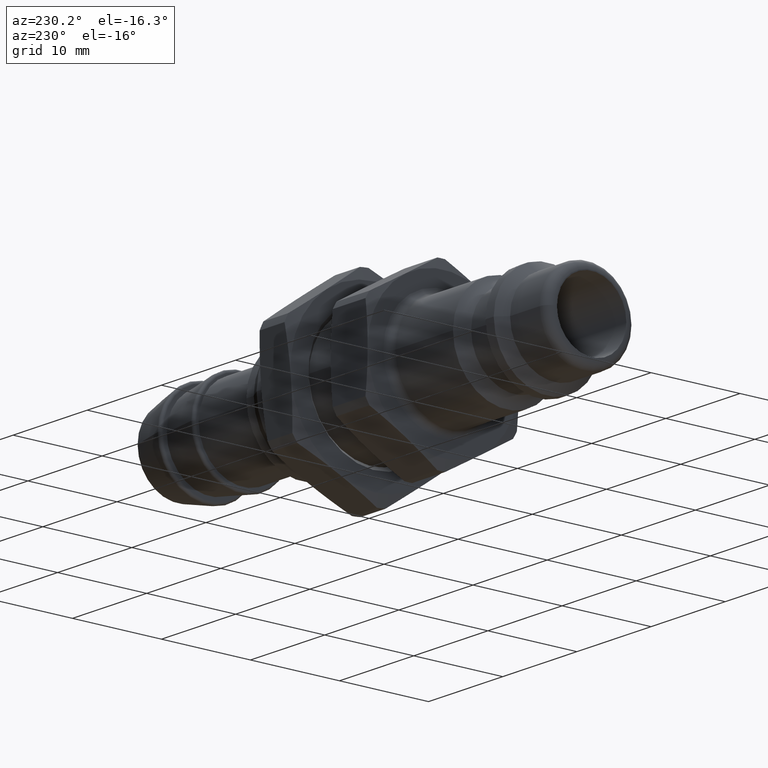
[diagram: clean part render]
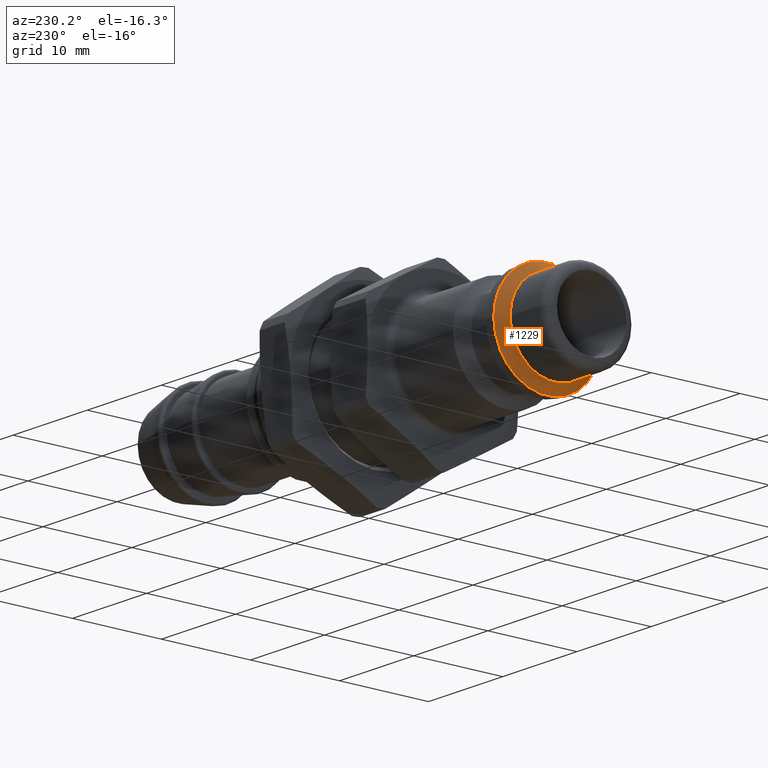
[diagram: same view with one face highlighted and labeled with its STEP entity id]
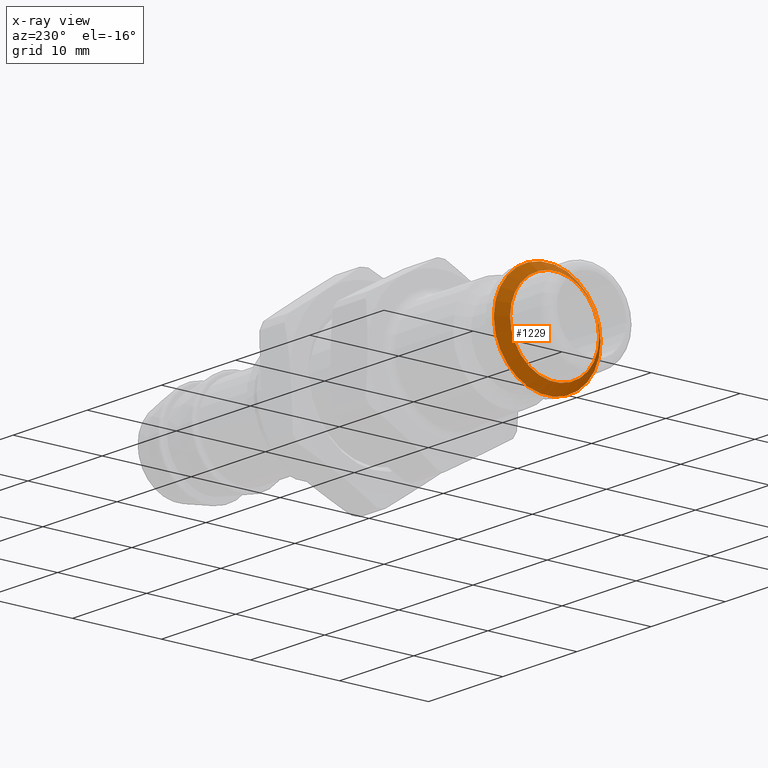
[diagram: x-ray of the same camera — body ghosted, the highlighted face saturated]
A machine part, auxiliary view. The second image highlights one B-rep face of the part: STEP entity #1229.
The next image is the same camera in x-ray: the body ghosted, the highlighted face saturated — about 1% of this face is hidden behind the body in this view.
In plain terms, the highlighted conical surface has half-angle 45 deg.
Its self-contained STEP definition (entity closure, byte-faithful):
#389=CARTESIAN_POINT('',(5.0,5.0,0.0));
#390=VERTEX_POINT('',#389);
#391=CARTESIAN_POINT('',(5.0,0.0,0.0));
#392=DIRECTION('',(1.0,0.0,0.0));
#393=DIRECTION('',(0.0,1.0,0.0));
#394=AXIS2_PLACEMENT_3D('',#391,#392,#393);
#395=CIRCLE('',#394,5.0);
#396=EDGE_CURVE('',#390,#390,#395,.T.);
#1210=CARTESIAN_POINT('',(5.500000000000000,0.0,0.0));
#1211=DIRECTION('',(1.0,0.0,0.0));
#1212=DIRECTION('',(0.0,1.0,0.0));
#1213=AXIS2_PLACEMENT_3D('',#1210,#1211,#1212);
#1214=CONICAL_SURFACE('',#1213,5.500000000000000,45.000000000000043);
#1215=CARTESIAN_POINT('',(6.0,6.000000000000001,0.0));
#1216=VERTEX_POINT('',#1215);
#1217=CARTESIAN_POINT('',(6.0,0.0,0.0));
#1218=DIRECTION('',(1.0,0.0,0.0));
#1219=DIRECTION('',(0.0,1.0,0.0));
#1220=AXIS2_PLACEMENT_3D('',#1217,#1218,#1219);
#1221=CIRCLE('',#1220,6.000000000000001);
#1222=EDGE_CURVE('',#1216,#1216,#1221,.T.);
#1223=ORIENTED_EDGE('',*,*,#1222,.F.);
#1224=EDGE_LOOP('',(#1223));
#1225=FACE_OUTER_BOUND('',#1224,.T.);
#1226=ORIENTED_EDGE('',*,*,#396,.T.);
#1227=EDGE_LOOP('',(#1226));
#1228=FACE_BOUND('',#1227,.T.);
#1229=ADVANCED_FACE('',(#1225,#1228),#1214,.T.);